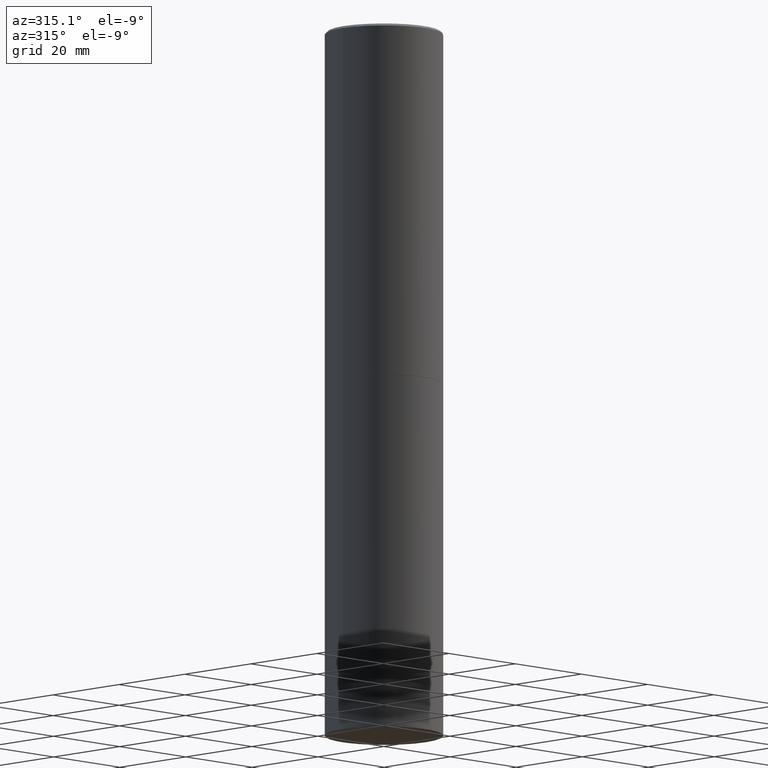
[diagram: clean part render]
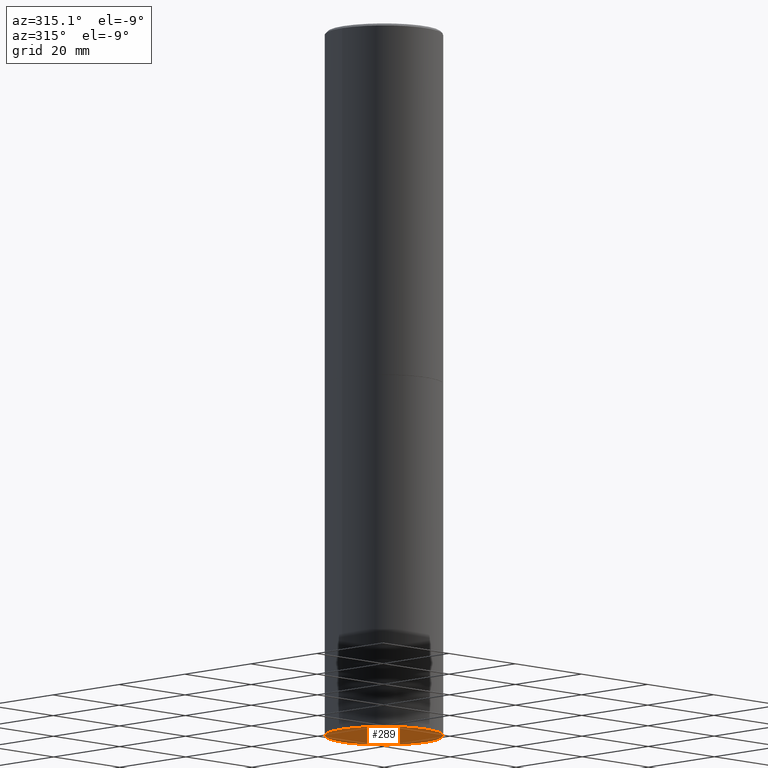
[diagram: same view with one face highlighted and labeled with its STEP entity id]
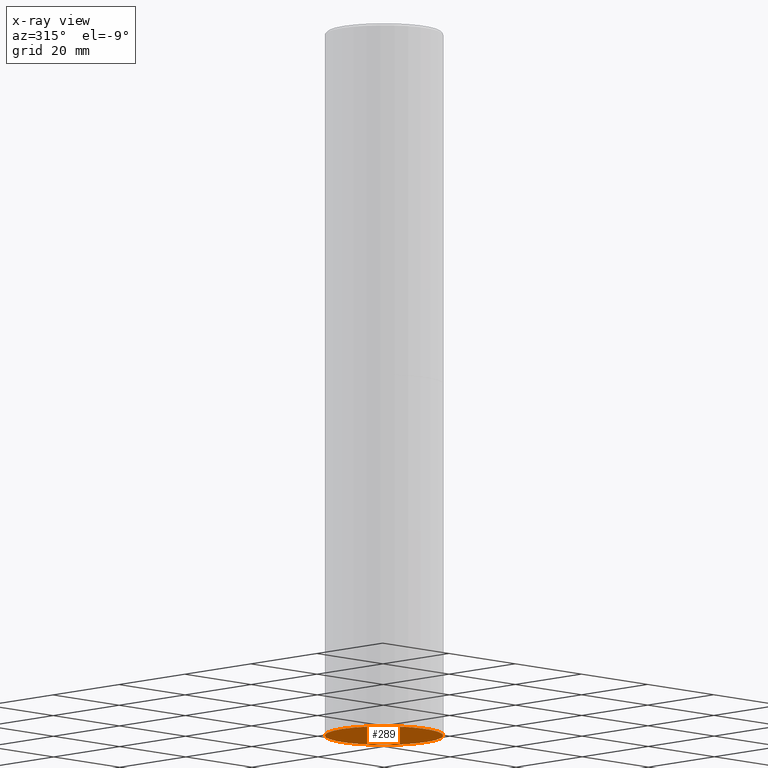
[diagram: x-ray of the same camera — body ghosted, the highlighted face saturated]
A machine part, auxiliary view. The second image highlights one B-rep face of the part: STEP entity #289.
The next image is the same camera in x-ray: the body ghosted, the highlighted face saturated — about 0% of this face is hidden behind the body in this view.
In plain terms, the highlighted planar face has unit normal (0, -0, -1).
Its self-contained STEP definition (entity closure, byte-faithful):
#4 = VERTEX_POINT ( 'NONE', #69 ) ;
#19 = CARTESIAN_POINT ( 'NONE',  ( 1.467281283711081958E-28, -2.094888803305887271E-14, -6.000000000000000888 ) ) ;
#40 = DIRECTION ( 'NONE',  ( -2.445468806185136597E-29, 3.491481338843145583E-15, 1.000000000000000000 ) ) ;
#47 = EDGE_CURVE ( 'NONE', #4, #294, #239, .T. ) ;
#69 = CARTESIAN_POINT ( 'NONE',  ( 0.5000000000000000000, -2.444036937190200606E-14, -6.000000000000000888 ) ) ;
#74 = AXIS2_PLACEMENT_3D ( 'NONE', #188, #40, #99 ) ;
#99 = DIRECTION ( 'NONE',  ( 1.000000000000000000, -6.982962677686262766E-15, 0.000000000000000000 ) ) ;
#120 = EDGE_LOOP ( 'NONE', ( #266, #270 ) ) ;
#156 = CARTESIAN_POINT ( 'NONE',  ( 3.491481338843279295E-15, 0.4999999999999790168, -6.000000000000002665 ) ) ;
#173 = AXIS2_PLACEMENT_3D ( 'NONE', #156, #279, #178 ) ;
#176 = FACE_OUTER_BOUND ( 'NONE', #120, .T. ) ;
#178 = DIRECTION ( 'NONE',  ( -1.000000000000000000, 6.982962677686265922E-15, -4.876176775795935793E-29 ) ) ;
#188 = CARTESIAN_POINT ( 'NONE',  ( 1.467281283711081958E-28, -2.094888803305887271E-14, -6.000000000000000888 ) ) ;
#193 = DIRECTION ( 'NONE',  ( 1.000000000000000000, -6.982962677686262766E-15, 0.000000000000000000 ) ) ;
#200 = DIRECTION ( 'NONE',  ( -2.445468806185136597E-29, 3.491481338843145583E-15, 1.000000000000000000 ) ) ;
#239 = CIRCLE ( 'NONE', #338, 0.5000000000000000000 ) ;
#250 = CARTESIAN_POINT ( 'NONE',  ( -0.5000000000000000000, -1.215895234599365439E-14, -6.000000000000000888 ) ) ;
#266 = ORIENTED_EDGE ( 'NONE', *, *, #47, .F. ) ;
#270 = ORIENTED_EDGE ( 'NONE', *, *, #285, .F. ) ;
#277 = CIRCLE ( 'NONE', #74, 0.5000000000000000000 ) ;
#279 = DIRECTION ( 'NONE',  ( 2.438088387897960049E-29, -3.491481338843145188E-15, -1.000000000000000000 ) ) ;
#285 = EDGE_CURVE ( 'NONE', #294, #4, #277, .T. ) ;
#289 = ADVANCED_FACE ( 'NONE', ( #176 ), #303, .T. ) ;
#294 = VERTEX_POINT ( 'NONE', #250 ) ;
#303 = PLANE ( 'NONE',  #173 ) ;
#338 = AXIS2_PLACEMENT_3D ( 'NONE', #19, #200, #193 ) ;